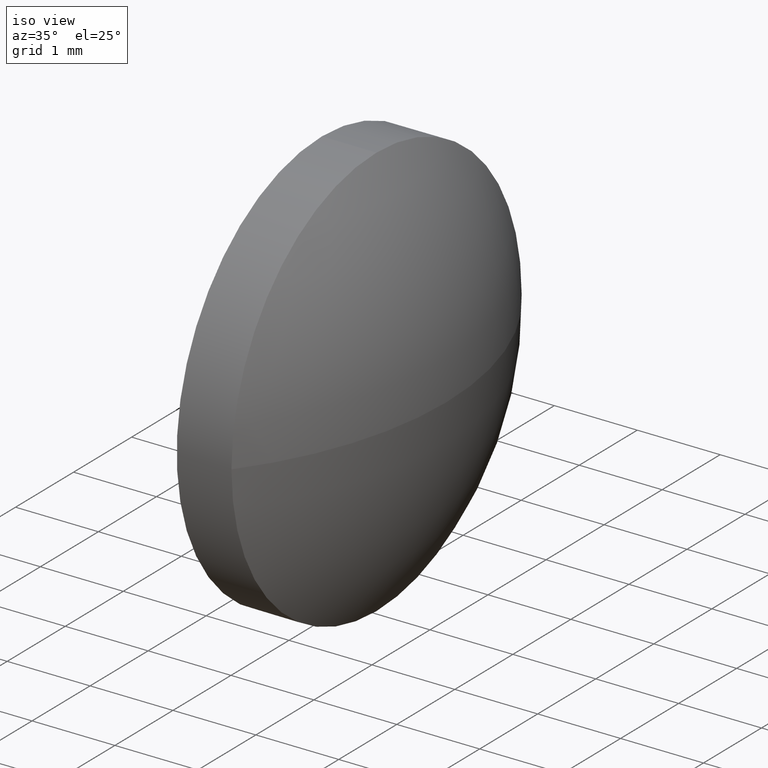
[diagram: clean part render]
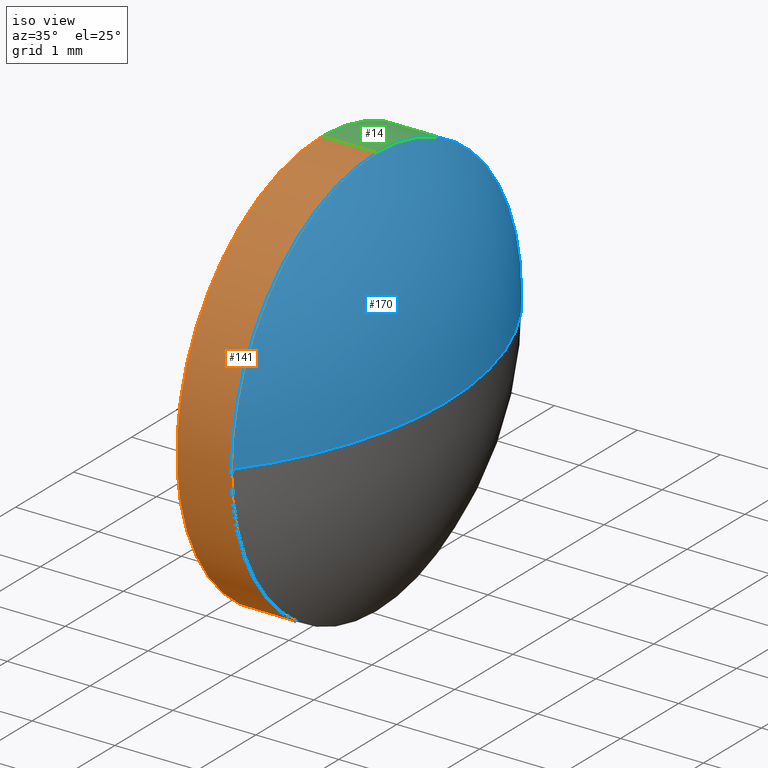
[diagram: same view with three faces highlighted in distinct colors, each labeled with its STEP entity id]
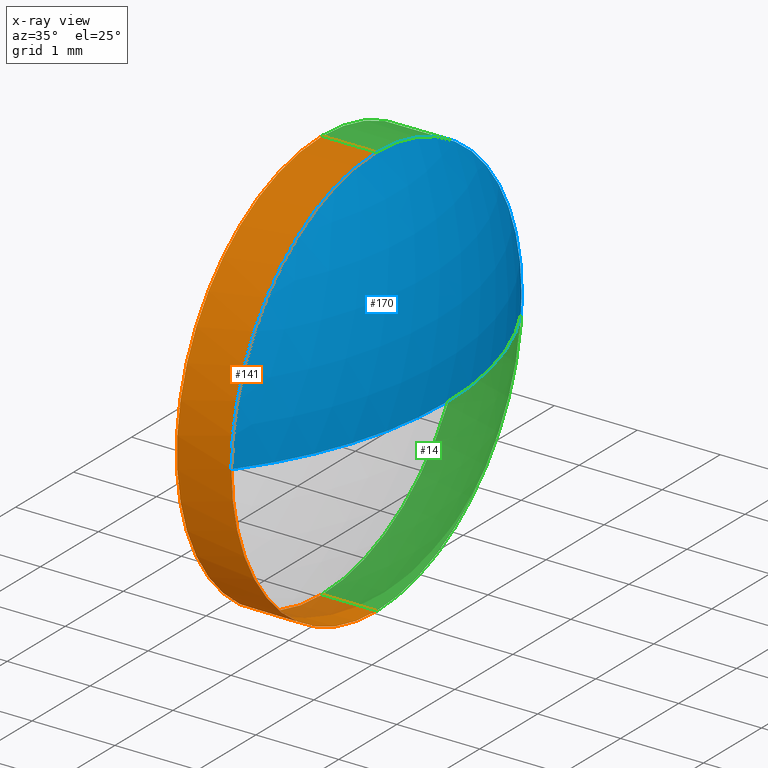
[diagram: x-ray of the same camera — body ghosted, the three highlighted faces saturated]
A machine part, iso view with three faces highlighted in distinct colors.
The next image is the same camera in x-ray (body ghosted, the three faces saturated) — at least one of them is partly hidden behind the body in this view.
Their STEP definitions:

[orange] entity #141 — the highlighted cylindrical surface (partial cylindrical patch) has radius 2.5 mm, axis along (-1, -0, -0).
#2 = EDGE_CURVE ( 'NONE', #171, #54, #88, .T. ) ;
#3 = VECTOR ( 'NONE', #124, 1000.000000000000000 ) ;
#5 = CARTESIAN_POINT ( 'NONE',  ( 521.4497579000514000, 146.8657861925488500, 0.0000000000000000000 ) ) ;
#11 = ORIENTED_EDGE ( 'NONE', *, *, #158, .F. ) ;
#12 = DIRECTION ( 'NONE',  ( -1.000000000000000000, -0.0000000000000000000, -0.0000000000000000000 ) ) ;
#17 = CARTESIAN_POINT ( 'NONE',  ( 521.4497579000514000, 146.8657861925488500, 2.500000000000002200 ) ) ;
#18 = DIRECTION ( 'NONE',  ( -1.000000000000000000, -0.0000000000000000000, -0.0000000000000000000 ) ) ;
#19 = CARTESIAN_POINT ( 'NONE',  ( 521.4497579000514000, 146.8657861925488500, -2.500000000000002200 ) ) ;
#20 = AXIS2_PLACEMENT_3D ( 'NONE', #63, #12, #49 ) ;
#27 = VERTEX_POINT ( 'NONE', #19 ) ;
#29 = CIRCLE ( 'NONE', #180, 2.500000000000002200 ) ;
#33 = CARTESIAN_POINT ( 'NONE',  ( 520.3936392805773000, 146.8657861925488500, 2.500000000000002200 ) ) ;
#38 = ORIENTED_EDGE ( 'NONE', *, *, #55, .T. ) ;
#41 = LINE ( 'NONE', #33, #3 ) ;
#49 = DIRECTION ( 'NONE',  ( 0.0000000000000000000, 0.0000000000000000000, 1.000000000000000000 ) ) ;
#51 = CARTESIAN_POINT ( 'NONE',  ( 521.4497579000514000, 146.8657861925488500, 0.0000000000000000000 ) ) ;
#52 = CARTESIAN_POINT ( 'NONE',  ( 520.3936392805773000, 146.8657861925488500, -2.500000000000002200 ) ) ;
#54 = VERTEX_POINT ( 'NONE', #146 ) ;
#55 = EDGE_CURVE ( 'NONE', #85, #72, #148, .T. ) ;
#61 = DIRECTION ( 'NONE',  ( 0.0000000000000000000, 0.0000000000000000000, 1.000000000000000000 ) ) ;
#63 = CARTESIAN_POINT ( 'NONE',  ( 520.3936392805773000, 146.8657861925488500, 0.0000000000000000000 ) ) ;
#72 = VERTEX_POINT ( 'NONE', #17 ) ;
#74 = EDGE_CURVE ( 'NONE', #27, #85, #29, .T. ) ;
#76 = CARTESIAN_POINT ( 'NONE',  ( 520.7897579000514300, 146.8657861925488500, 0.0000000000000000000 ) ) ;
#77 = CARTESIAN_POINT ( 'NONE',  ( 521.4497579000514000, 144.3657861925488500, -3.061616997868367400E-016 ) ) ;
#84 = EDGE_LOOP ( 'NONE', ( #11, #150, #38, #159, #103 ) ) ;
#85 = VERTEX_POINT ( 'NONE', #77 ) ;
#88 = CIRCLE ( 'NONE', #185, 2.500000000000002200 ) ;
#103 = ORIENTED_EDGE ( 'NONE', *, *, #2, .F. ) ;
#107 = AXIS2_PLACEMENT_3D ( 'NONE', #5, #133, #149 ) ;
#116 = CYLINDRICAL_SURFACE ( 'NONE', #20, 2.500000000000002200 ) ;
#124 = DIRECTION ( 'NONE',  ( -1.000000000000000000, -0.0000000000000000000, -0.0000000000000000000 ) ) ;
#132 = EDGE_CURVE ( 'NONE', #72, #54, #41, .T. ) ;
#133 = DIRECTION ( 'NONE',  ( -1.000000000000000000, -0.0000000000000000000, -0.0000000000000000000 ) ) ;
#136 = DIRECTION ( 'NONE',  ( 0.0000000000000000000, 0.0000000000000000000, 1.000000000000000000 ) ) ;
#141 = ADVANCED_FACE ( 'NONE', ( #184 ), #116, .T. ) ;
#146 = CARTESIAN_POINT ( 'NONE',  ( 520.7897579000514300, 146.8657861925488500, 2.500000000000002200 ) ) ;
#147 = LINE ( 'NONE', #52, #175 ) ;
#148 = CIRCLE ( 'NONE', #107, 2.500000000000002200 ) ;
#149 = DIRECTION ( 'NONE',  ( 0.0000000000000000000, 0.0000000000000000000, 1.000000000000000000 ) ) ;
#150 = ORIENTED_EDGE ( 'NONE', *, *, #74, .T. ) ;
#153 = DIRECTION ( 'NONE',  ( -1.000000000000000000, -0.0000000000000000000, -0.0000000000000000000 ) ) ;
#158 = EDGE_CURVE ( 'NONE', #27, #171, #147, .T. ) ;
#159 = ORIENTED_EDGE ( 'NONE', *, *, #132, .T. ) ;
#167 = DIRECTION ( 'NONE',  ( -1.000000000000000000, -0.0000000000000000000, -0.0000000000000000000 ) ) ;
#171 = VERTEX_POINT ( 'NONE', #181 ) ;
#175 = VECTOR ( 'NONE', #167, 1000.000000000000000 ) ;
#180 = AXIS2_PLACEMENT_3D ( 'NONE', #51, #153, #61 ) ;
#181 = CARTESIAN_POINT ( 'NONE',  ( 520.7897579000514300, 146.8657861925488500, -2.500000000000002200 ) ) ;
#184 = FACE_OUTER_BOUND ( 'NONE', #84, .T. ) ;
#185 = AXIS2_PLACEMENT_3D ( 'NONE', #76, #18, #136 ) ;

[blue] entity #170 — the highlighted spherical surface has radius 4.1402 mm.
#5 = CARTESIAN_POINT ( 'NONE',  ( 521.4497579000514000, 146.8657861925488500, 0.0000000000000000000 ) ) ;
#6 = DIRECTION ( 'NONE',  ( 0.0000000000000000000, 1.000000000000000000, 1.224646799147350500E-016 ) ) ;
#8 = CARTESIAN_POINT ( 'NONE',  ( 522.2897579000514300, 146.8657861925488500, 0.0000000000000000000 ) ) ;
#13 = EDGE_CURVE ( 'NONE', #143, #24, #42, .T. ) ;
#17 = CARTESIAN_POINT ( 'NONE',  ( 521.4497579000514000, 146.8657861925488500, 2.500000000000002200 ) ) ;
#23 = DIRECTION ( 'NONE',  ( 0.0000000000000000000, 1.224646799147353200E-016, -1.000000000000000000 ) ) ;
#24 = VERTEX_POINT ( 'NONE', #46 ) ;
#30 = FACE_OUTER_BOUND ( 'NONE', #67, .T. ) ;
#39 = ORIENTED_EDGE ( 'NONE', *, *, #55, .F. ) ;
#42 = CIRCLE ( 'NONE', #100, 4.140238095238113500 ) ;
#46 = CARTESIAN_POINT ( 'NONE',  ( 521.4497579000514000, 149.3657861925488500, 0.0000000000000000000 ) ) ;
#55 = EDGE_CURVE ( 'NONE', #85, #72, #148, .T. ) ;
#67 = EDGE_LOOP ( 'NONE', ( #75, #174, #178, #39 ) ) ;
#70 = DIRECTION ( 'NONE',  ( 1.000000000000000000, 0.0000000000000000000, 0.0000000000000000000 ) ) ;
#72 = VERTEX_POINT ( 'NONE', #17 ) ;
#75 = ORIENTED_EDGE ( 'NONE', *, *, #183, .F. ) ;
#77 = CARTESIAN_POINT ( 'NONE',  ( 521.4497579000514000, 144.3657861925488500, -3.061616997868367400E-016 ) ) ;
#78 = DIRECTION ( 'NONE',  ( 0.0000000000000000000, 1.000000000000000000, 0.0000000000000000000 ) ) ;
#79 = DIRECTION ( 'NONE',  ( -0.0000000000000000000, 0.0000000000000000000, -1.000000000000000000 ) ) ;
#82 = AXIS2_PLACEMENT_3D ( 'NONE', #152, #79, #78 ) ;
#85 = VERTEX_POINT ( 'NONE', #77 ) ;
#90 = CARTESIAN_POINT ( 'NONE',  ( 518.1495198048132800, 146.8657861925488500, 0.0000000000000000000 ) ) ;
#94 = CARTESIAN_POINT ( 'NONE',  ( 518.1495198048132800, 146.8657861925488500, 0.0000000000000000000 ) ) ;
#100 = AXIS2_PLACEMENT_3D ( 'NONE', #94, #151, #70 ) ;
#104 = DIRECTION ( 'NONE',  ( 0.0000000000000000000, 0.0000000000000000000, 1.000000000000000000 ) ) ;
#107 = AXIS2_PLACEMENT_3D ( 'NONE', #5, #133, #149 ) ;
#108 = AXIS2_PLACEMENT_3D ( 'NONE', #111, #123, #104 ) ;
#111 = CARTESIAN_POINT ( 'NONE',  ( 521.4497579000514000, 146.8657861925488500, 0.0000000000000000000 ) ) ;
#123 = DIRECTION ( 'NONE',  ( -1.000000000000000000, -0.0000000000000000000, -0.0000000000000000000 ) ) ;
#127 = CIRCLE ( 'NONE', #108, 2.500000000000002200 ) ;
#133 = DIRECTION ( 'NONE',  ( -1.000000000000000000, -0.0000000000000000000, -0.0000000000000000000 ) ) ;
#135 = CIRCLE ( 'NONE', #164, 4.140238095238141000 ) ;
#143 = VERTEX_POINT ( 'NONE', #8 ) ;
#148 = CIRCLE ( 'NONE', #107, 2.500000000000002200 ) ;
#149 = DIRECTION ( 'NONE',  ( 0.0000000000000000000, 0.0000000000000000000, 1.000000000000000000 ) ) ;
#151 = DIRECTION ( 'NONE',  ( -0.0000000000000000000, 0.0000000000000000000, 1.000000000000000000 ) ) ;
#152 = CARTESIAN_POINT ( 'NONE',  ( 518.1495198048132800, 146.8657861925488500, 0.0000000000000000000 ) ) ;
#164 = AXIS2_PLACEMENT_3D ( 'NONE', #90, #23, #6 ) ;
#168 = EDGE_CURVE ( 'NONE', #72, #24, #127, .T. ) ;
#170 = ADVANCED_FACE ( 'NONE', ( #30 ), #182, .T. ) ;
#174 = ORIENTED_EDGE ( 'NONE', *, *, #13, .T. ) ;
#178 = ORIENTED_EDGE ( 'NONE', *, *, #168, .F. ) ;
#182 = SPHERICAL_SURFACE ( 'NONE', #82, 4.140238095238132100 ) ;
#183 = EDGE_CURVE ( 'NONE', #143, #85, #135, .T. ) ;

[green] entity #14 — the highlighted cylindrical surface (partial cylindrical patch) has radius 2.5 mm, axis along (-1, -0, -0).
#3 = VECTOR ( 'NONE', #124, 1000.000000000000000 ) ;
#4 = FACE_OUTER_BOUND ( 'NONE', #115, .T. ) ;
#14 = ADVANCED_FACE ( 'NONE', ( #4 ), #114, .T. ) ;
#17 = CARTESIAN_POINT ( 'NONE',  ( 521.4497579000514000, 146.8657861925488500, 2.500000000000002200 ) ) ;
#19 = CARTESIAN_POINT ( 'NONE',  ( 521.4497579000514000, 146.8657861925488500, -2.500000000000002200 ) ) ;
#24 = VERTEX_POINT ( 'NONE', #46 ) ;
#27 = VERTEX_POINT ( 'NONE', #19 ) ;
#33 = CARTESIAN_POINT ( 'NONE',  ( 520.3936392805773000, 146.8657861925488500, 2.500000000000002200 ) ) ;
#35 = DIRECTION ( 'NONE',  ( -1.000000000000000000, -0.0000000000000000000, -0.0000000000000000000 ) ) ;
#40 = CIRCLE ( 'NONE', #65, 2.500000000000002200 ) ;
#41 = LINE ( 'NONE', #33, #3 ) ;
#46 = CARTESIAN_POINT ( 'NONE',  ( 521.4497579000514000, 149.3657861925488500, 0.0000000000000000000 ) ) ;
#47 = ORIENTED_EDGE ( 'NONE', *, *, #177, .F. ) ;
#50 = DIRECTION ( 'NONE',  ( -1.000000000000000000, -0.0000000000000000000, -0.0000000000000000000 ) ) ;
#52 = CARTESIAN_POINT ( 'NONE',  ( 520.3936392805773000, 146.8657861925488500, -2.500000000000002200 ) ) ;
#54 = VERTEX_POINT ( 'NONE', #146 ) ;
#57 = AXIS2_PLACEMENT_3D ( 'NONE', #60, #120, #160 ) ;
#59 = DIRECTION ( 'NONE',  ( 0.0000000000000000000, 0.0000000000000000000, 1.000000000000000000 ) ) ;
#60 = CARTESIAN_POINT ( 'NONE',  ( 520.3936392805773000, 146.8657861925488500, 0.0000000000000000000 ) ) ;
#65 = AXIS2_PLACEMENT_3D ( 'NONE', #97, #50, #59 ) ;
#72 = VERTEX_POINT ( 'NONE', #17 ) ;
#89 = ORIENTED_EDGE ( 'NONE', *, *, #168, .T. ) ;
#97 = CARTESIAN_POINT ( 'NONE',  ( 520.7897579000514300, 146.8657861925488500, 0.0000000000000000000 ) ) ;
#104 = DIRECTION ( 'NONE',  ( 0.0000000000000000000, 0.0000000000000000000, 1.000000000000000000 ) ) ;
#108 = AXIS2_PLACEMENT_3D ( 'NONE', #111, #123, #104 ) ;
#111 = CARTESIAN_POINT ( 'NONE',  ( 521.4497579000514000, 146.8657861925488500, 0.0000000000000000000 ) ) ;
#114 = CYLINDRICAL_SURFACE ( 'NONE', #57, 2.500000000000002200 ) ;
#115 = EDGE_LOOP ( 'NONE', ( #186, #173, #47, #128, #89 ) ) ;
#119 = CIRCLE ( 'NONE', #139, 2.500000000000002200 ) ;
#120 = DIRECTION ( 'NONE',  ( -1.000000000000000000, -0.0000000000000000000, -0.0000000000000000000 ) ) ;
#123 = DIRECTION ( 'NONE',  ( -1.000000000000000000, -0.0000000000000000000, -0.0000000000000000000 ) ) ;
#124 = DIRECTION ( 'NONE',  ( -1.000000000000000000, -0.0000000000000000000, -0.0000000000000000000 ) ) ;
#126 = CARTESIAN_POINT ( 'NONE',  ( 521.4497579000514000, 146.8657861925488500, 0.0000000000000000000 ) ) ;
#127 = CIRCLE ( 'NONE', #108, 2.500000000000002200 ) ;
#128 = ORIENTED_EDGE ( 'NONE', *, *, #132, .F. ) ;
#132 = EDGE_CURVE ( 'NONE', #72, #54, #41, .T. ) ;
#138 = DIRECTION ( 'NONE',  ( 0.0000000000000000000, 0.0000000000000000000, 1.000000000000000000 ) ) ;
#139 = AXIS2_PLACEMENT_3D ( 'NONE', #126, #35, #138 ) ;
#140 = EDGE_CURVE ( 'NONE', #24, #27, #119, .T. ) ;
#146 = CARTESIAN_POINT ( 'NONE',  ( 520.7897579000514300, 146.8657861925488500, 2.500000000000002200 ) ) ;
#147 = LINE ( 'NONE', #52, #175 ) ;
#158 = EDGE_CURVE ( 'NONE', #27, #171, #147, .T. ) ;
#160 = DIRECTION ( 'NONE',  ( 0.0000000000000000000, 0.0000000000000000000, 1.000000000000000000 ) ) ;
#167 = DIRECTION ( 'NONE',  ( -1.000000000000000000, -0.0000000000000000000, -0.0000000000000000000 ) ) ;
#168 = EDGE_CURVE ( 'NONE', #72, #24, #127, .T. ) ;
#171 = VERTEX_POINT ( 'NONE', #181 ) ;
#173 = ORIENTED_EDGE ( 'NONE', *, *, #158, .T. ) ;
#175 = VECTOR ( 'NONE', #167, 1000.000000000000000 ) ;
#177 = EDGE_CURVE ( 'NONE', #54, #171, #40, .T. ) ;
#181 = CARTESIAN_POINT ( 'NONE',  ( 520.7897579000514300, 146.8657861925488500, -2.500000000000002200 ) ) ;
#186 = ORIENTED_EDGE ( 'NONE', *, *, #140, .T. ) ;